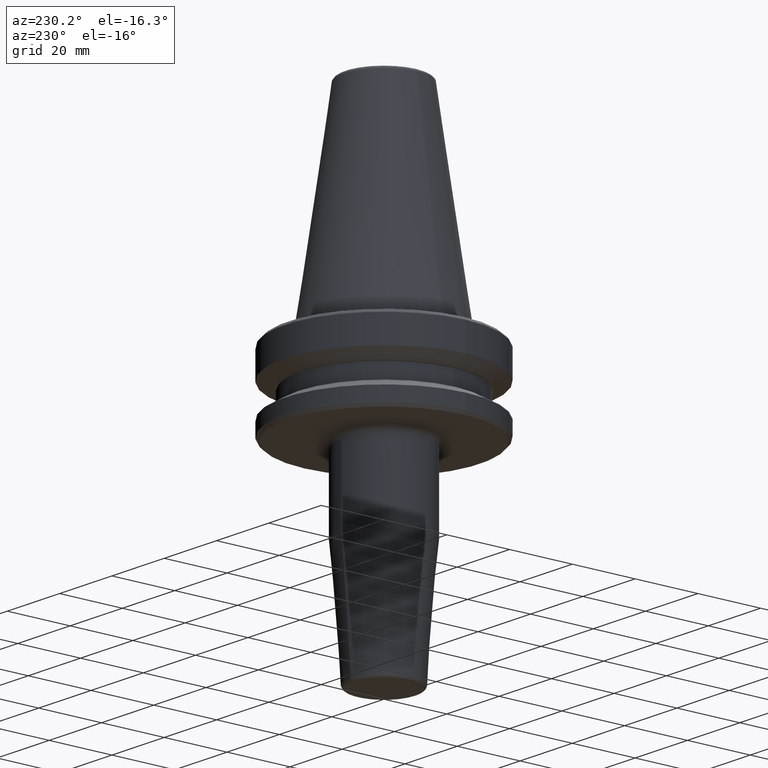
[diagram: clean part render]
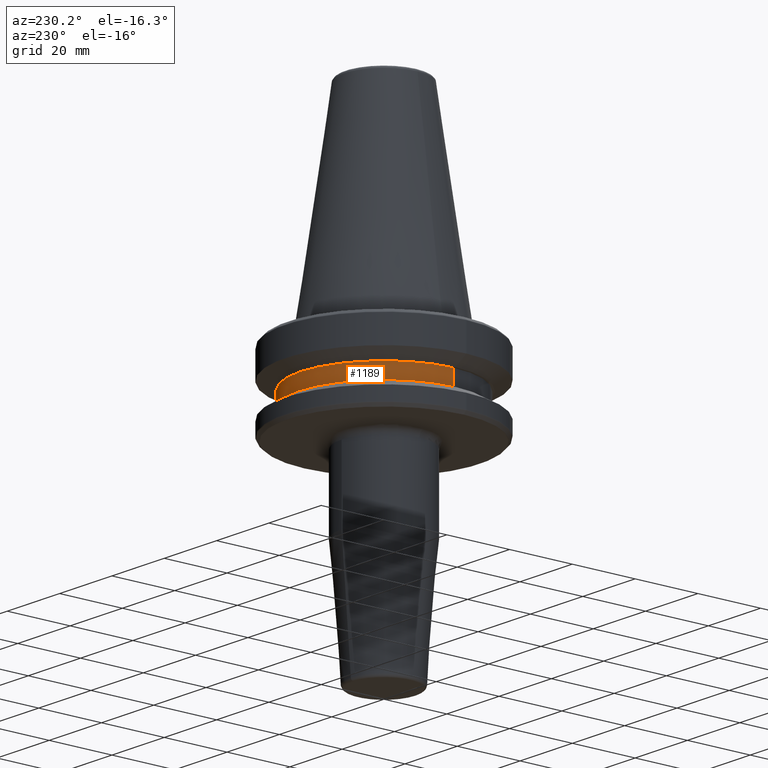
[diagram: same view with one face highlighted and labeled with its STEP entity id]
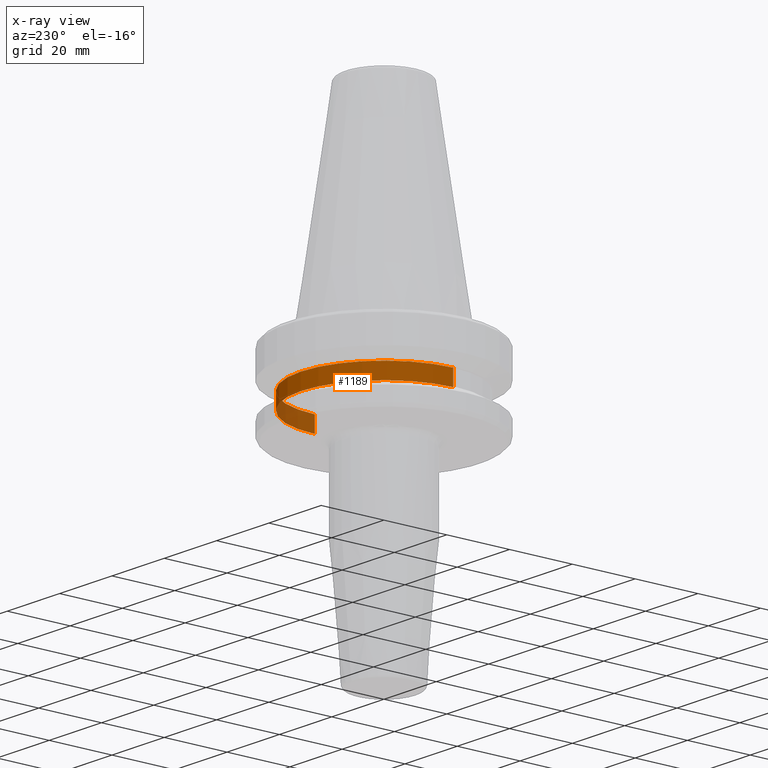
[diagram: x-ray of the same camera — body ghosted, the highlighted face saturated]
A machine part, auxiliary view. The second image highlights one B-rep face of the part: STEP entity #1189.
The next image is the same camera in x-ray: the body ghosted, the highlighted face saturated — about 17% of this face is hidden behind the body in this view.
In plain terms, the highlighted cylindrical surface (partial cylindrical patch) has radius 26.5 mm, axis along (-0, -0, 1).
Its self-contained STEP definition (entity closure, byte-faithful):
#11 = EDGE_CURVE ( 'NONE', #177, #48, #1176, .T. ) ;
#23 = DIRECTION ( 'NONE',  ( -0.0000000000000000000, -0.0000000000000000000, 1.000000000000000000 ) ) ;
#31 = LINE ( 'NONE', #755, #1044 ) ;
#44 = DIRECTION ( 'NONE',  ( 1.000000000000000000, 0.0000000000000000000, 0.0000000000000000000 ) ) ;
#48 = VERTEX_POINT ( 'NONE', #1000 ) ;
#82 = EDGE_CURVE ( 'NONE', #1213, #858, #91, .T. ) ;
#84 = DIRECTION ( 'NONE',  ( 1.000000000000000000, 0.0000000000000000000, 0.0000000000000000000 ) ) ;
#91 = CIRCLE ( 'NONE', #340, 26.50000000000000000 ) ;
#168 = EDGE_CURVE ( 'NONE', #858, #48, #31, .T. ) ;
#177 = VERTEX_POINT ( 'NONE', #562 ) ;
#223 = CARTESIAN_POINT ( 'NONE',  ( -26.50000000000000000, 3.245314017740485800E-015, -19.10000000000000500 ) ) ;
#232 = CYLINDRICAL_SURFACE ( 'NONE', #652, 26.50000000000000000 ) ;
#304 = ORIENTED_EDGE ( 'NONE', *, *, #11, .F. ) ;
#340 = AXIS2_PLACEMENT_3D ( 'NONE', #1269, #387, #632 ) ;
#385 = LINE ( 'NONE', #624, #574 ) ;
#387 = DIRECTION ( 'NONE',  ( -0.0000000000000000000, -0.0000000000000000000, 1.000000000000000000 ) ) ;
#406 = ORIENTED_EDGE ( 'NONE', *, *, #82, .T. ) ;
#480 = DIRECTION ( 'NONE',  ( -0.0000000000000000000, -0.0000000000000000000, 1.000000000000000000 ) ) ;
#493 = DIRECTION ( 'NONE',  ( -0.0000000000000000000, -0.0000000000000000000, 1.000000000000000000 ) ) ;
#497 = CARTESIAN_POINT ( 'NONE',  ( 26.50000000000000000, 0.0000000000000000000, -19.10000000000000500 ) ) ;
#562 = CARTESIAN_POINT ( 'NONE',  ( 26.50000000000000000, 0.0000000000000000000, -14.10000000000000100 ) ) ;
#574 = VECTOR ( 'NONE', #23, 1000.000000000000000 ) ;
#580 = AXIS2_PLACEMENT_3D ( 'NONE', #760, #747, #44 ) ;
#624 = CARTESIAN_POINT ( 'NONE',  ( 26.50000000000000000, 0.0000000000000000000, 69.75694866325665100 ) ) ;
#632 = DIRECTION ( 'NONE',  ( 1.000000000000000000, 0.0000000000000000000, 0.0000000000000000000 ) ) ;
#652 = AXIS2_PLACEMENT_3D ( 'NONE', #1179, #493, #84 ) ;
#694 = ORIENTED_EDGE ( 'NONE', *, *, #975, .F. ) ;
#747 = DIRECTION ( 'NONE',  ( -0.0000000000000000000, -0.0000000000000000000, 1.000000000000000000 ) ) ;
#755 = CARTESIAN_POINT ( 'NONE',  ( -26.50000000000000000, 3.245314017740485800E-015, 69.75694866325665100 ) ) ;
#760 = CARTESIAN_POINT ( 'NONE',  ( 0.0000000000000000000, 0.0000000000000000000, -14.10000000000000100 ) ) ;
#858 = VERTEX_POINT ( 'NONE', #223 ) ;
#975 = EDGE_CURVE ( 'NONE', #1213, #177, #385, .T. ) ;
#1000 = CARTESIAN_POINT ( 'NONE',  ( -26.50000000000000000, 3.245314017740485800E-015, -14.10000000000000100 ) ) ;
#1027 = EDGE_LOOP ( 'NONE', ( #406, #1275, #304, #694 ) ) ;
#1044 = VECTOR ( 'NONE', #480, 1000.000000000000000 ) ;
#1176 = CIRCLE ( 'NONE', #580, 26.50000000000000000 ) ;
#1179 = CARTESIAN_POINT ( 'NONE',  ( 0.0000000000000000000, 0.0000000000000000000, 69.75694866325665100 ) ) ;
#1189 = ADVANCED_FACE ( 'NONE', ( #1276 ), #232, .T. ) ;
#1213 = VERTEX_POINT ( 'NONE', #497 ) ;
#1269 = CARTESIAN_POINT ( 'NONE',  ( 0.0000000000000000000, 0.0000000000000000000, -19.10000000000000500 ) ) ;
#1275 = ORIENTED_EDGE ( 'NONE', *, *, #168, .T. ) ;
#1276 = FACE_OUTER_BOUND ( 'NONE', #1027, .T. ) ;